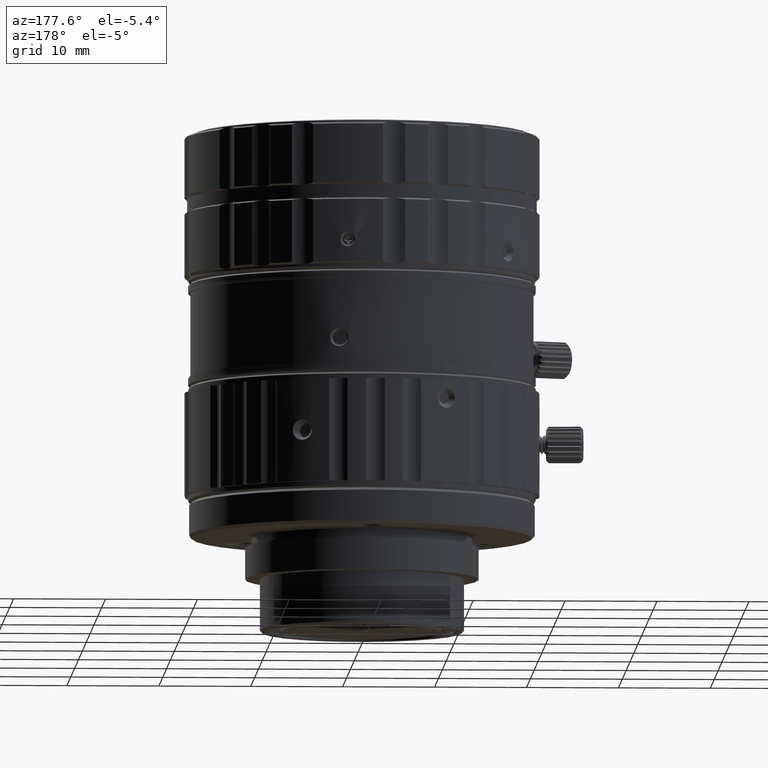
[diagram: clean part render]
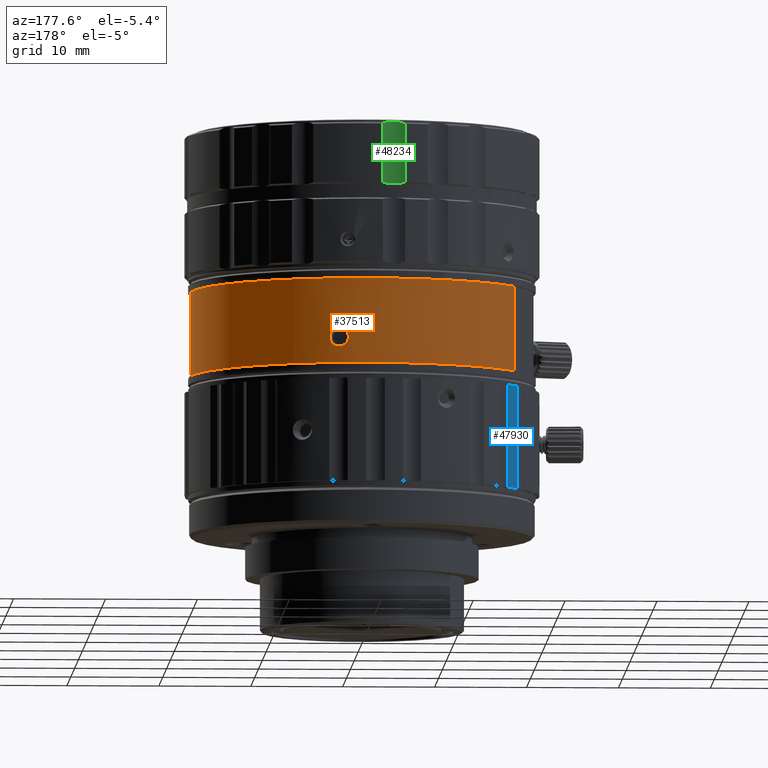
[diagram: same view with three faces highlighted in distinct colors, each labeled with its STEP entity id]
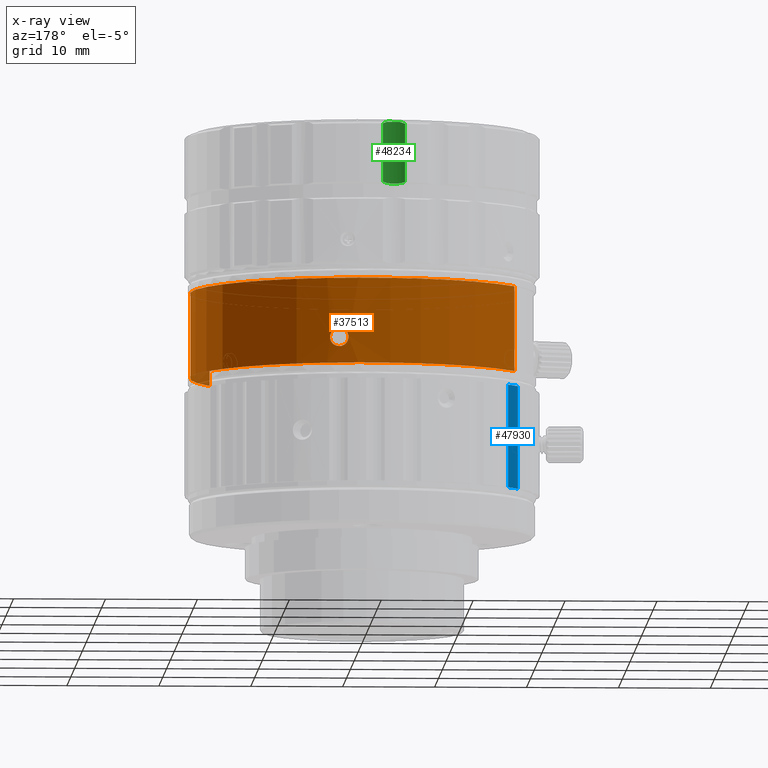
[diagram: x-ray of the same camera — body ghosted, the three highlighted faces saturated]
A machine part, auxiliary view with three faces highlighted in distinct colors.
The next image is the same camera in x-ray (body ghosted, the three faces saturated) — at least one of them is partly hidden behind the body in this view.
Their STEP definitions:

[orange] entity #37513 — the highlighted cylindrical surface (partial cylindrical patch) has radius 18.7 mm, axis along (0, 0, 1).
#139 = CARTESIAN_POINT ( 'NONE',  ( 2.251340142366236030, 18.56399985622164195, 18.57991853912697167 ) ) ;
#195 = VERTEX_POINT ( 'NONE', #25108 ) ;
#324 = EDGE_CURVE ( 'NONE', #17576, #14553, #42213, .T. ) ;
#628 = VERTEX_POINT ( 'NONE', #18775 ) ;
#638 = CARTESIAN_POINT ( 'NONE',  ( 4.233263099357547965, 18.21453163649968587, 18.51991838868319462 ) ) ;
#986 = CARTESIAN_POINT ( 'NONE',  ( 4.189832934962410604, 18.22460387203837229, 18.20051670581828063 ) ) ;
#1685 = CARTESIAN_POINT ( 'NONE',  ( 4.211389559210275024, 18.21965193912267011, 18.28350229625987566 ) ) ;
#2036 = CARTESIAN_POINT ( 'NONE',  ( 4.218978216545655968, 18.21774804549364291, 18.67579122243237322 ) ) ;
#2123 = EDGE_LOOP ( 'NONE', ( #9833, #43968, #58295, #30949 ) ) ;
#2360 = EDGE_CURVE ( 'NONE', #46749, #57878, #35588, .T. ) ;
#2560 = DIRECTION ( 'NONE',  ( -0.8660254037844969943, 0.4999999999998990252, 0.000000000000000000 ) ) ;
#2917 = FACE_BOUND ( 'NONE', #12540, .T. ) ;
#2952 = LINE ( 'NONE', #29784, #8270 ) ;
#3301 = CARTESIAN_POINT ( 'NONE',  ( 2.990391659138555536, 18.45970878979845153, 17.52159397077514313 ) ) ;
#3585 = CARTESIAN_POINT ( 'NONE',  ( 0.000000000000000000, 0.000000000000000000, -1.362500000000000044 ) ) ;
#4003 = CARTESIAN_POINT ( 'NONE',  ( 2.260249512002430183, 18.56283466045243458, 18.36078597094534004 ) ) ;
#6214 = CARTESIAN_POINT ( 'NONE',  ( 3.367596037697752287, 18.39468009827372441, 17.49994429289510833 ) ) ;
#6229 = CARTESIAN_POINT ( 'NONE',  ( 2.323361040985547632, 18.55551628351373239, 18.87260364383725175 ) ) ;
#6908 = CARTESIAN_POINT ( 'NONE',  ( 4.153469132464272739, 18.23291066080279421, 18.90100674380899903 ) ) ;
#7121 = EDGE_CURVE ( 'NONE', #50098, #61422, #49356, .T. ) ;
#7262 = CARTESIAN_POINT ( 'NONE',  ( 3.899544803398861337, 18.28882998312402464, 19.25923590273238517 ) ) ;
#8270 = VECTOR ( 'NONE', #56340, 1000.000000000000000 ) ;
#8905 = CARTESIAN_POINT ( 'NONE',  ( 2.736277888818424930, 18.49866230727799632, 17.63481227163454790 ) ) ;
#9238 = CARTESIAN_POINT ( 'NONE',  ( 2.285896153679041642, 18.55967799649585714, 18.23401306184187831 ) ) ;
#9639 = DIRECTION ( 'NONE',  ( -0.8660254037844969943, 0.4999999999998990252, 0.000000000000000000 ) ) ;
#9663 = CARTESIAN_POINT ( 'NONE',  ( 3.245249978137299873, 18.41685600425444846, 17.50422862316920103 ) ) ;
#9833 = ORIENTED_EDGE ( 'NONE', *, *, #2360, .F. ) ;
#10110 = CARTESIAN_POINT ( 'NONE',  ( 2.299537459336946643, 18.55807940249711763, 18.79088602181977308 ) ) ;
#11462 = CARTESIAN_POINT ( 'NONE',  ( 3.245249978137299873, 18.41685600425444846, 17.50422862316920103 ) ) ;
#12174 = CARTESIAN_POINT ( 'NONE',  ( 4.053030191923989278, 18.25533699527796117, 17.91449266249088978 ) ) ;
#12506 = CARTESIAN_POINT ( 'NONE',  ( 3.736380005432801799, 18.32341098043265504, 17.61344343271039037 ) ) ;
#12540 = EDGE_LOOP ( 'NONE', ( #25850, #36245, #30489, #44574 ) ) ;
#13683 = EDGE_CURVE ( 'NONE', #46749, #628, #21056, .T. ) ;
#13777 = CARTESIAN_POINT ( 'NONE',  ( 2.453267427404813628, 18.53839864460976017, 17.88843092985050376 ) ) ;
#14483 = CARTESIAN_POINT ( 'NONE',  ( 2.805400089415863274, 18.48832272361379125, 17.59800608069522099 ) ) ;
#14553 = VERTEX_POINT ( 'NONE', #49725 ) ;
#15346 = CARTESIAN_POINT ( 'NONE',  ( 2.628429977405068119, 18.51435650609562700, 19.27914889448376456 ) ) ;
#15534 = CARTESIAN_POINT ( 'NONE',  ( 0.000000000000000000, 0.000000000000000000, 24.94999999999999929 ) ) ;
#15660 = CARTESIAN_POINT ( 'NONE',  ( 3.476132665044037395, 18.37421458390378604, 19.48442067401516553 ) ) ;
#16693 = CARTESIAN_POINT ( 'NONE',  ( 4.125633382463253618, 18.23931541091526043, 18.96217359724225204 ) ) ;
#17038 = CARTESIAN_POINT ( 'NONE',  ( 3.493983790920494936, 18.37102361791439620, 17.51932683858180795 ) ) ;
#17397 = CARTESIAN_POINT ( 'NONE',  ( 4.232760843084655278, 18.21464111774253780, 18.53784647752415893 ) ) ;
#17576 = VERTEX_POINT ( 'NONE', #21359 ) ;
#18629 = DIRECTION ( 'NONE',  ( 0.000000000000000000, 0.000000000000000000, 1.000000000000000000 ) ) ;
#18775 = CARTESIAN_POINT ( 'NONE',  ( -16.19467505066617008, 9.349999999938111372, 15.69999999999999929 ) ) ;
#19004 = CARTESIAN_POINT ( 'NONE',  ( 2.760620879660200533, 18.49505741690938621, 17.62098891026028014 ) ) ;
#19339 = CARTESIAN_POINT ( 'NONE',  ( 2.608139983437145037, 18.51719187720837567, 17.72261134651004966 ) ) ;
#19709 = CARTESIAN_POINT ( 'NONE',  ( 2.529627807096745062, 18.52807734531415917, 17.79870989165382156 ) ) ;
#20319 = DIRECTION ( 'NONE',  ( 0.8660254037844969943, -0.4999999999998990252, 0.000000000000000000 ) ) ;
#20397 = CARTESIAN_POINT ( 'NONE',  ( 2.251212292554810812, 18.56399661681000524, 18.49995018108744915 ) ) ;
#21056 = CIRCLE ( 'NONE', #29969, 18.69999999987999928 ) ;
#21359 = CARTESIAN_POINT ( 'NONE',  ( 2.283964048664465007, 18.55510753448789885, 18.73536185655465047 ) ) ;
#21910 = CARTESIAN_POINT ( 'NONE',  ( 3.961328778317206645, 18.27554270464434083, 17.80120353429503766 ) ) ;
#22962 = CARTESIAN_POINT ( 'NONE',  ( 3.971593080161228251, 18.27328767814454835, 17.81239856531187726 ) ) ;
#23307 = CARTESIAN_POINT ( 'NONE',  ( 4.180774460592416197, 18.22651612953323408, 18.83243844726789717 ) ) ;
#24905 = CARTESIAN_POINT ( 'NONE',  ( 2.303379144126835865, 18.55757893846799078, 18.17559590031262573 ) ) ;
#25108 = CARTESIAN_POINT ( 'NONE',  ( -16.19467505066617008, 9.349999999938111372, 24.94999999999999929 ) ) ;
#25850 = ORIENTED_EDGE ( 'NONE', *, *, #7121, .F. ) ;
#26112 = CARTESIAN_POINT ( 'NONE',  ( 2.560879857138159466, 18.52389123438942065, 19.21916475329091156 ) ) ;
#27049 = EDGE_CURVE ( 'NONE', #628, #195, #2952, .T. ) ;
#27131 = CARTESIAN_POINT ( 'NONE',  ( 3.243181642754560112, 18.41726079674409888, 19.49885864951449932 ) ) ;
#27826 = CARTESIAN_POINT ( 'NONE',  ( 4.132807849518584931, 18.23767788214187391, 18.94743215748627208 ) ) ;
#28535 = CARTESIAN_POINT ( 'NONE',  ( 3.878843669217157064, 18.29320624705657750, 19.27695760426604110 ) ) ;
#29784 = CARTESIAN_POINT ( 'NONE',  ( -16.19467505066617008, 9.349999999938111372, -1.362500000000000044 ) ) ;
#29969 = AXIS2_PLACEMENT_3D ( 'NONE', #68161, #41244, #20319 ) ;
#30138 = CARTESIAN_POINT ( 'NONE',  ( 2.503647186324434060, 18.53162849649397970, 17.82672238542849286 ) ) ;
#30489 = ORIENTED_EDGE ( 'NONE', *, *, #324, .F. ) ;
#30949 = ORIENTED_EDGE ( 'NONE', *, *, #53858, .T. ) ;
#31131 = CARTESIAN_POINT ( 'NONE',  ( 2.251212292554810812, 18.56399661681000524, 18.49995018108744915 ) ) ;
#31673 = CARTESIAN_POINT ( 'NONE',  ( 3.836822528680110533, 18.30203430939959830, 19.31092372405599633 ) ) ;
#31862 = CARTESIAN_POINT ( 'NONE',  ( 2.251339866633488285, 18.56397488566215159, 18.48334330546360604 ) ) ;
#32044 = CARTESIAN_POINT ( 'NONE',  ( 2.521402620938986594, 18.52939608548221528, 19.17917559128452609 ) ) ;
#32709 = CARTESIAN_POINT ( 'NONE',  ( 4.146423129689514653, 18.23454637064197570, 18.91760859762197811 ) ) ;
#33072 = CARTESIAN_POINT ( 'NONE',  ( 3.932999075985577520, 18.28167805597980689, 19.22761459797846939 ) ) ;
#33415 = CARTESIAN_POINT ( 'NONE',  ( 4.233403536565653269, 18.21450243460348872, 18.50917470819319988 ) ) ;
#33749 = CARTESIAN_POINT ( 'NONE',  ( 4.231664853538679161, 18.21488311118911696, 18.56457121916940523 ) ) ;
#34228 = DIRECTION ( 'NONE',  ( 0.000000000000000000, 0.000000000000000000, 1.000000000000000000 ) ) ;
#35029 = CARTESIAN_POINT ( 'NONE',  ( 2.313837504264089517, 18.55634587020040271, 18.14537420200270645 ) ) ;
#35376 = CARTESIAN_POINT ( 'NONE',  ( 2.795622074668574708, 18.48979961256322468, 17.60288531342790108 ) ) ;
#35588 = LINE ( 'NONE', #60777, #41620 ) ;
#35704 = CARTESIAN_POINT ( 'NONE',  ( 16.19467505066616653, -9.349999999938113149, 24.94999999999999929 ) ) ;
#36245 = ORIENTED_EDGE ( 'NONE', *, *, #51412, .F. ) ;
#36590 = CARTESIAN_POINT ( 'NONE',  ( 2.846175089316255846, 18.48224937709806071, 19.42021964308115400 ) ) ;
#36906 = CARTESIAN_POINT ( 'NONE',  ( 3.659005170816370889, 18.33831806847075896, 19.41735640394751528 ) ) ;
#36918 = CARTESIAN_POINT ( 'NONE',  ( 2.433900780967047428, 18.54133162820244252, 19.07186767919768045 ) ) ;
#37076 = CARTESIAN_POINT ( 'NONE',  ( 2.253642230798782009, 18.56367263210969298, 18.42907390055996686 ) ) ;
#37513 = ADVANCED_FACE ( 'NONE', ( #60856, #2917 ), #50370, .T. ) ;
#37947 = CARTESIAN_POINT ( 'NONE',  ( 4.032980425070166852, 18.26001065799792755, 19.11652516488869935 ) ) ;
#37962 = CARTESIAN_POINT ( 'NONE',  ( 2.619086241960097539, 18.51568373309925875, 19.27148368996459737 ) ) ;
#38664 = CARTESIAN_POINT ( 'NONE',  ( 4.173308521222507395, 18.22837879127069272, 18.15011637086682583 ) ) ;
#39009 = CARTESIAN_POINT ( 'NONE',  ( 3.940380176501842246, 18.28009075846108189, 19.22028363636891157 ) ) ;
#39343 = CARTESIAN_POINT ( 'NONE',  ( 4.184660909787803362, 18.22578718853461410, 18.18375538082267084 ) ) ;
#41244 = DIRECTION ( 'NONE',  ( 0.000000000000000000, 0.000000000000000000, 1.000000000000000000 ) ) ;
#41620 = VECTOR ( 'NONE', #34228, 1000.000000000000000 ) ;
#42213 = B_SPLINE_CURVE_WITH_KNOTS ( 'NONE', 3,
 ( #42846, #10110, #6229, #42498, #36918, #54048, #32044, #26112, #59269, #52646, #37962, #15346, #57899, #36590, #64176, #63487, #27131 ),
 .UNSPECIFIED., .F., .F.,
 ( 4, 2, 2, 2, 1, 2, 2, 2, 4 ),
 ( 0.000000000000000000, 0.2500000000000010547, 0.3749999999999983347, 0.4374999999999967248, 0.4687499999999957256, 0.4843749999999949485, 0.4999999999999941713, 0.7499999999999971134, 1.000000000000000000 ),
 .UNSPECIFIED. ) ;
#42324 = CARTESIAN_POINT ( 'NONE',  ( 2.251815316349948137, 18.56391005925629401, 18.46414046964996203 ) ) ;
#42498 = CARTESIAN_POINT ( 'NONE',  ( 2.400924806757842145, 18.54565039286728734, 19.01919466233076506 ) ) ;
#42846 = CARTESIAN_POINT ( 'NONE',  ( 2.283964048664465007, 18.55510753448789885, 18.73536185655465047 ) ) ;
#43179 = CARTESIAN_POINT ( 'NONE',  ( 3.993099017776216897, 18.26855813759924274, 17.83695233948711589 ) ) ;
#43864 = CARTESIAN_POINT ( 'NONE',  ( 4.199287122396272665, 18.22224873738643325, 18.77254784786887143 ) ) ;
#43968 = ORIENTED_EDGE ( 'NONE', *, *, #13683, .T. ) ;
#44232 = CARTESIAN_POINT ( 'NONE',  ( 4.086536701909163405, 18.24813329190857303, 19.03417942511224581 ) ) ;
#44574 = ORIENTED_EDGE ( 'NONE', *, *, #48497, .F. ) ;
#44575 = CARTESIAN_POINT ( 'NONE',  ( 4.228738525764958567, 18.21563260212769109, 18.38066040315518990 ) ) ;
#45504 = CARTESIAN_POINT ( 'NONE',  ( 3.121146065590598706, 18.43813279775215719, 17.50024891009108430 ) ) ;
#45835 = CARTESIAN_POINT ( 'NONE',  ( 2.661141976369918005, 18.50964031578447688, 17.68249553288602627 ) ) ;
#46540 = CARTESIAN_POINT ( 'NONE',  ( 2.254993668640908666, 18.56349966909282401, 18.41179602365821921 ) ) ;
#46749 = VERTEX_POINT ( 'NONE', #68709 ) ;
#47247 = CARTESIAN_POINT ( 'NONE',  ( 2.260730307070912826, 18.56285100071518102, 18.65947375527981578 ) ) ;
#48497 = EDGE_CURVE ( 'NONE', #61422, #17576, #67465, .T. ) ;
#48793 = CARTESIAN_POINT ( 'NONE',  ( 4.233538271200914416, 18.21448765118192270, 18.44303506773498569 ) ) ;
#49134 = CARTESIAN_POINT ( 'NONE',  ( 4.229579399804605622, 18.21535060020553587, 18.59076753769454626 ) ) ;
#49356 = B_SPLINE_CURVE_WITH_KNOTS ( 'NONE', 3,
 ( #50766, #45504, #3301, #56359, #66834, #14483, #35376, #19004, #8905, #45835, #19339, #19709, #30138, #13777, #57038, #67532, #51442, #35029, #24905, #9238, #51797, #4003, #46540, #37076, #42324, #31862, #58062 ),
 .UNSPECIFIED., .F., .F.,
 ( 4, 2, 2, 2, 2, 2, 2, 2, 2, 2, 1, 2, 2, 4 ),
 ( 0.000000000000000000, 0.2173006326240855546, 0.2444632117020971995, 0.2716257907801088445, 0.3259509489361321344, 0.4346012652481788252, 0.4889264234042039470, 0.5432515815602291243, 0.6519018978722798119, 0.7062270560283051557, 0.7605522141843304995, 0.8148773723403559543, 0.8420399514183712908, 0.8692025304963866272 ),
 .UNSPECIFIED. ) ;
#49725 = CARTESIAN_POINT ( 'NONE',  ( 3.243181642754560112, 18.41726079674409888, 19.49885864951449932 ) ) ;
#49842 = CARTESIAN_POINT ( 'NONE',  ( 3.919696465947490882, 18.28452776430411930, 19.24040973825843537 ) ) ;
#50098 = VERTEX_POINT ( 'NONE', #9663 ) ;
#50370 = CYLINDRICAL_SURFACE ( 'NONE', #68300, 18.69999999987999928 ) ;
#50766 = CARTESIAN_POINT ( 'NONE',  ( 3.245249978137299873, 18.41685600425444846, 17.50422862316920103 ) ) ;
#51412 = EDGE_CURVE ( 'NONE', #14553, #50098, #62127, .T. ) ;
#51442 = CARTESIAN_POINT ( 'NONE',  ( 2.350806156632075705, 18.55178774111910656, 18.05402992179465826 ) ) ;
#51797 = CARTESIAN_POINT ( 'NONE',  ( 2.270460115741250728, 18.56155851876482643, 18.29497537659923623 ) ) ;
#52178 = CARTESIAN_POINT ( 'NONE',  ( 2.283964048664465007, 18.55510753448789885, 18.73536185655465047 ) ) ;
#52646 = CARTESIAN_POINT ( 'NONE',  ( 2.603886732316271768, 18.51783685800113588, 19.25856404256589727 ) ) ;
#52853 = DIRECTION ( 'NONE',  ( 0.000000000000000000, 0.000000000000000000, -1.000000000000000000 ) ) ;
#52992 = CARTESIAN_POINT ( 'NONE',  ( 3.719865186346422270, 18.32610237089692262, 19.38775495266195392 ) ) ;
#53858 = EDGE_CURVE ( 'NONE', #195, #57878, #60596, .T. ) ;
#54035 = CARTESIAN_POINT ( 'NONE',  ( 4.024463324214316629, 18.26165268927534058, 17.87458608385850312 ) ) ;
#54048 = CARTESIAN_POINT ( 'NONE',  ( 2.497733010168182499, 18.53265450620338939, 19.15220028195729185 ) ) ;
#54731 = CARTESIAN_POINT ( 'NONE',  ( 4.166462701737020602, 18.22993841446036711, 18.13156252508973409 ) ) ;
#55076 = CARTESIAN_POINT ( 'NONE',  ( 4.136243955260979988, 18.23681073822693932, 18.05544458699763766 ) ) ;
#56340 = DIRECTION ( 'NONE',  ( 0.000000000000000000, 0.000000000000000000, 1.000000000000000000 ) ) ;
#56359 = CARTESIAN_POINT ( 'NONE',  ( 2.851188885806060114, 18.48131520411405759, 17.57728451642683609 ) ) ;
#57038 = CARTESIAN_POINT ( 'NONE',  ( 2.435581221367480786, 18.54073410982474712, 17.91316780361007233 ) ) ;
#57878 = VERTEX_POINT ( 'NONE', #35704 ) ;
#57899 = CARTESIAN_POINT ( 'NONE',  ( 2.736910790225346002, 18.49891783279793955, 19.36581892945842753 ) ) ;
#58062 = CARTESIAN_POINT ( 'NONE',  ( 2.251212292554810812, 18.56399661681000524, 18.49995018108744915 ) ) ;
#58216 = CARTESIAN_POINT ( 'NONE',  ( 3.807984641983407137, 18.30802011761736026, 19.33159556676754320 ) ) ;
#58295 = ORIENTED_EDGE ( 'NONE', *, *, #27049, .T. ) ;
#59257 = CARTESIAN_POINT ( 'NONE',  ( 4.224191810962694582, 18.21656531980768534, 18.64239542316898479 ) ) ;
#59269 = CARTESIAN_POINT ( 'NONE',  ( 2.581610443061367111, 18.52098472385783623, 19.23903844002336072 ) ) ;
#59618 = CARTESIAN_POINT ( 'NONE',  ( 3.852216590554379927, 18.29948986644723874, 17.68833779142222440 ) ) ;
#59978 = CARTESIAN_POINT ( 'NONE',  ( 4.106165458922910183, 18.24354669336809209, 17.99694696649591563 ) ) ;
#60312 = CARTESIAN_POINT ( 'NONE',  ( 4.203914764020697525, 18.22137542061589244, 18.25052808432514695 ) ) ;
#60596 = CIRCLE ( 'NONE', #63920, 18.69999999987999928 ) ;
#60777 = CARTESIAN_POINT ( 'NONE',  ( 16.19467505066616653, -9.349999999938113149, -1.362500000000000044 ) ) ;
#60856 = FACE_OUTER_BOUND ( 'NONE', #2123, .T. ) ;
#61422 = VERTEX_POINT ( 'NONE', #31131 ) ;
#62127 = B_SPLINE_CURVE_WITH_KNOTS ( 'NONE', 3,
 ( #68033, #63470, #15660, #36906, #52992, #58216, #31673, #28535, #7262, #49842, #33072, #39009, #65210, #37947, #44232, #64851, #16693, #27826, #32709, #6908, #23307, #43864, #2036, #59257, #49134, #33749, #17397, #638, #33415, #48793, #44575, #1685, #60312, #986, #39343, #38664, #54731, #55076, #59978, #12174, #54035, #43179, #22962, #21910, #59618, #12506, #17038, #6214, #11462 ),
 .UNSPECIFIED., .F., .F.,
 ( 4, 2, 2, 2, 1, 2, 2, 2, 2, 2, 2, 2, 2, 1, 2, 2, 2, 2, 2, 2, 2, 1, 2, 2, 2, 4 ),
 ( 0.000000000000000000, 0.1249999999999949207, 0.1874999999999926448, 0.2187499999999917843, 0.2343749999999924227, 0.2421874999999921452, 0.2499999999999918954, 0.3124999999999920064, 0.3437499999999908962, 0.3593749999999905631, 0.3749999999999901745, 0.4374999999999894529, 0.4687499999999890643, 0.4843749999999903411, 0.4921874999999910627, 0.4999999999999916733, 0.5624999999999932276, 0.5937499999999925615, 0.6093749999999936717, 0.6249999999999947820, 0.6874999999999984457, 0.7187500000000014433, 0.7343750000000016653, 0.7500000000000018874, 0.8750000000000009992, 1.000000000000000000 ),
 .UNSPECIFIED. ) ;
#63470 = CARTESIAN_POINT ( 'NONE',  ( 3.354303570806642654, 18.39704780709248055, 19.49997120160953656 ) ) ;
#63487 = CARTESIAN_POINT ( 'NONE',  ( 3.154303405496779789, 18.43226771607760028, 19.49965160750259940 ) ) ;
#63920 = AXIS2_PLACEMENT_3D ( 'NONE', #15534, #52853, #9639 ) ;
#64176 = CARTESIAN_POINT ( 'NONE',  ( 3.054833984334522690, 18.44893098290869915, 19.48699058813896556 ) ) ;
#64851 = CARTESIAN_POINT ( 'NONE',  ( 4.103035495735874782, 18.24443801589161041, 19.00583096601215871 ) ) ;
#65210 = CARTESIAN_POINT ( 'NONE',  ( 3.991850298266599761, 18.26898688510280877, 19.16781222617055036 ) ) ;
#66834 = CARTESIAN_POINT ( 'NONE',  ( 2.835834185984714484, 18.48367849374144001, 17.58390508051555656 ) ) ;
#67465 = B_SPLINE_CURVE_WITH_KNOTS ( 'NONE', 3,
 ( #20397, #139, #47247, #52178 ),
 .UNSPECIFIED., .F., .F.,
 ( 4, 4 ),
 ( 0.8692025304963866272, 1.000000000000000000 ),
 .UNSPECIFIED. ) ;
#67532 = CARTESIAN_POINT ( 'NONE',  ( 2.381458303569336632, 18.54785274526969729, 17.99554600026900530 ) ) ;
#68033 = CARTESIAN_POINT ( 'NONE',  ( 3.243181642754560112, 18.41726079674409888, 19.49885864951449932 ) ) ;
#68161 = CARTESIAN_POINT ( 'NONE',  ( 0.000000000000000000, 0.000000000000000000, 15.69999999999999929 ) ) ;
#68300 = AXIS2_PLACEMENT_3D ( 'NONE', #3585, #18629, #2560 ) ;
#68709 = CARTESIAN_POINT ( 'NONE',  ( 16.19467505066616653, -9.349999999938113149, 15.69999999999999929 ) ) ;

[blue] entity #47930 — the highlighted cylindrical surface (partial cylindrical patch) has radius 19.3 mm, axis along (0, 0, 1).
#2807 = DIRECTION ( 'NONE',  ( 0.000000000000000000, 0.000000000000000000, 1.000000000000000000 ) ) ;
#3479 = EDGE_LOOP ( 'NONE', ( #42558, #11583, #65829, #17668 ) ) ;
#4810 = VERTEX_POINT ( 'NONE', #40595 ) ;
#5481 = EDGE_CURVE ( 'NONE', #8295, #64606, #10495, .T. ) ;
#8295 = VERTEX_POINT ( 'NONE', #15890 ) ;
#9194 = VECTOR ( 'NONE', #63526, 1000.000000000000000 ) ;
#9351 = DIRECTION ( 'NONE',  ( 0.9925461516413369711, -0.1218693434050259899, 0.000000000000000000 ) ) ;
#10495 = LINE ( 'NONE', #16746, #9194 ) ;
#11583 = ORIENTED_EDGE ( 'NONE', *, *, #66883, .T. ) ;
#13735 = AXIS2_PLACEMENT_3D ( 'NONE', #32609, #15901, #22503 ) ;
#14580 = VERTEX_POINT ( 'NONE', #62257 ) ;
#15890 = CARTESIAN_POINT ( 'NONE',  ( -16.54353961665400163, 9.939884151838979776, 2.799391213819999891 ) ) ;
#15901 = DIRECTION ( 'NONE',  ( 0.000000000000000000, 0.000000000000000000, 1.000000000000000000 ) ) ;
#16746 = CARTESIAN_POINT ( 'NONE',  ( -16.54353961665860240, 9.939884151842369064, -2.131801679627900500E-11 ) ) ;
#17668 = ORIENTED_EDGE ( 'NONE', *, *, #34520, .T. ) ;
#19541 = CARTESIAN_POINT ( 'NONE',  ( -15.41341912069280085, 11.61535668887800021, -1.557087792036779786E-11 ) ) ;
#22082 = AXIS2_PLACEMENT_3D ( 'NONE', #45608, #30590, #9351 ) ;
#22503 = DIRECTION ( 'NONE',  ( 1.000000000000000000, 0.000000000000000000, 0.000000000000000000 ) ) ;
#24669 = EDGE_CURVE ( 'NONE', #14580, #4810, #67011, .T. ) ;
#30590 = DIRECTION ( 'NONE',  ( 0.000000000000000000, 0.000000000000000000, 1.000000000000000000 ) ) ;
#30604 = AXIS2_PLACEMENT_3D ( 'NONE', #41791, #52618, #47379 ) ;
#32609 = CARTESIAN_POINT ( 'NONE',  ( 0.000000000000000000, 0.000000000000000000, 2.799391213819999891 ) ) ;
#34520 = EDGE_CURVE ( 'NONE', #64606, #4810, #51806, .T. ) ;
#35818 = FACE_OUTER_BOUND ( 'NONE', #3479, .T. ) ;
#39153 = CARTESIAN_POINT ( 'NONE',  ( -16.54353961665839989, 9.939884151847969918, 14.00000000000000000 ) ) ;
#40595 = CARTESIAN_POINT ( 'NONE',  ( -15.41341912069110087, 11.61535668887439954, 14.00000000000000000 ) ) ;
#41791 = CARTESIAN_POINT ( 'NONE',  ( 0.000000000000000000, 0.000000000000000000, 14.00000000000000000 ) ) ;
#42558 = ORIENTED_EDGE ( 'NONE', *, *, #24669, .F. ) ;
#43775 = CIRCLE ( 'NONE', #13735, 19.30000000000000071 ) ;
#45608 = CARTESIAN_POINT ( 'NONE',  ( 0.000000000000000000, 0.000000000000000000, 25.25499999999999901 ) ) ;
#47379 = DIRECTION ( 'NONE',  ( 1.000000000000000000, 0.000000000000000000, 0.000000000000000000 ) ) ;
#47930 = ADVANCED_FACE ( 'NONE', ( #35818 ), #57139, .T. ) ;
#49976 = VECTOR ( 'NONE', #2807, 1000.000000000000000 ) ;
#51806 = CIRCLE ( 'NONE', #30604, 19.30000000000000071 ) ;
#52618 = DIRECTION ( 'NONE',  ( 0.000000000000000000, 0.000000000000000000, -1.000000000000000000 ) ) ;
#57139 = CYLINDRICAL_SURFACE ( 'NONE', #22082, 19.30000000000000071 ) ;
#62257 = CARTESIAN_POINT ( 'NONE',  ( -15.41341912069110087, 11.61535668887439954, 2.799391213819999891 ) ) ;
#63526 = DIRECTION ( 'NONE',  ( 0.000000000000000000, 0.000000000000000000, 1.000000000000000000 ) ) ;
#64606 = VERTEX_POINT ( 'NONE', #39153 ) ;
#65829 = ORIENTED_EDGE ( 'NONE', *, *, #5481, .T. ) ;
#66883 = EDGE_CURVE ( 'NONE', #14580, #8295, #43775, .T. ) ;
#67011 = LINE ( 'NONE', #19541, #49976 ) ;

[green] entity #48234 — the highlighted cylindrical surface (edge-blend (fillet) strip) has radius 3 mm, axis along (0, 0, 1).
#582 = CARTESIAN_POINT ( 'NONE',  ( -3.793005896617954509, 18.87451317338677725, 35.34528484750822486 ) ) ;
#2254 = LINE ( 'NONE', #23520, #33837 ) ;
#2659 = EDGE_CURVE ( 'NONE', #23716, #61670, #67849, .T. ) ;
#3393 = VERTEX_POINT ( 'NONE', #49173 ) ;
#4285 = CARTESIAN_POINT ( 'NONE',  ( -2.231823937103088351, 18.90270474757153707, 35.21959058198174120 ) ) ;
#4520 = CARTESIAN_POINT ( 'NONE',  ( -1.786549473618139983, 19.06851471402099918, 41.89821567898999888 ) ) ;
#4607 = CARTESIAN_POINT ( 'NONE',  ( -2.539641878434193867, 18.82980048851529631, 35.19999999981845917 ) ) ;
#5126 = CARTESIAN_POINT ( 'NONE',  ( -2.856136332307098513, 18.78532009378928791, 35.19999999981843786 ) ) ;
#5445 = CARTESIAN_POINT ( 'NONE',  ( -3.421871767168809697, 18.80703403182150169, 41.93428109757999778 ) ) ;
#6186 = CARTESIAN_POINT ( 'NONE',  ( -2.644288918242850173, 18.81509330608669828, 35.19999999999809859 ) ) ;
#6745 = EDGE_LOOP ( 'NONE', ( #67627, #36769, #52439, #7283, #35458, #25097, #8241 ) ) ;
#7283 = ORIENTED_EDGE ( 'NONE', *, *, #44408, .F. ) ;
#8241 = ORIENTED_EDGE ( 'NONE', *, *, #39137, .T. ) ;
#10459 = CARTESIAN_POINT ( 'NONE',  ( -1.468361946223530001, 19.24406176447210015, 41.75000000000000000 ) ) ;
#10741 = CARTESIAN_POINT ( 'NONE',  ( -3.067213209453864220, 18.77830220830583841, 35.21502555573255222 ) ) ;
#11774 = VERTEX_POINT ( 'NONE', #23446 ) ;
#12638 = VERTEX_POINT ( 'NONE', #63303 ) ;
#13009 = CIRCLE ( 'NONE', #48640, 3.000000000000000444 ) ;
#15580 = CARTESIAN_POINT ( 'NONE',  ( -3.892902205263879978, 18.90331485269679845, 41.75000000000000000 ) ) ;
#16635 = CARTESIAN_POINT ( 'NONE',  ( -3.061808221122889861, 21.78589751230860116, 41.95000000000000284 ) ) ;
#16655 = LINE ( 'NONE', #21513, #66457 ) ;
#18184 = B_SPLINE_CURVE_WITH_KNOTS ( 'NONE', 3,
 ( #35992, #4607, #47154, #4285, #41930, #21330, #47519, #47861, #36688 ),
 .UNSPECIFIED., .F., .F.,
 ( 4, 1, 2, 2, 4 ),
 ( 0.000000000000000000, 0.2499999999999978906, 0.3749999999999978351, 0.4999999999999977796, 1.000000000000000000 ),
 .UNSPECIFIED. ) ;
#21136 = CARTESIAN_POINT ( 'NONE',  ( -3.364951039656290277, 18.80125273754190118, 41.95000000000000284 ) ) ;
#21330 = CARTESIAN_POINT ( 'NONE',  ( -2.078666081667742915, 18.95135399621111105, 35.23749552659992901 ) ) ;
#21513 = CARTESIAN_POINT ( 'NONE',  ( -1.468361946223530001, 19.24406176447210015, 35.37320508075699621 ) ) ;
#23446 = CARTESIAN_POINT ( 'NONE',  ( -3.892902205265059923, 18.90331485269449985, 35.37320508075509196 ) ) ;
#23520 = CARTESIAN_POINT ( 'NONE',  ( -3.892902205263879978, 18.90331485269679845, 35.37320508075699621 ) ) ;
#23716 = VERTEX_POINT ( 'NONE', #15580 ) ;
#24677 = CARTESIAN_POINT ( 'NONE',  ( -3.892902205265059923, 18.90331485269449985, 35.37320508075509196 ) ) ;
#25097 = ORIENTED_EDGE ( 'NONE', *, *, #31137, .F. ) ;
#27442 = DIRECTION ( 'NONE',  ( -6.355331643803450622E-14, -1.768394408865269975E-14, 1.000000000000000000 ) ) ;
#27770 = FACE_OUTER_BOUND ( 'NONE', #6745, .T. ) ;
#29832 = AXIS2_PLACEMENT_3D ( 'NONE', #16635, #53971, #37889 ) ;
#30903 = EDGE_CURVE ( 'NONE', #60070, #12638, #38094, .T. ) ;
#31137 = EDGE_CURVE ( 'NONE', #11774, #42658, #52221, .T. ) ;
#31269 = CARTESIAN_POINT ( 'NONE',  ( -3.386346519348245376, 18.80186157447957740, 35.26010222347482426 ) ) ;
#32052 = CARTESIAN_POINT ( 'NONE',  ( -1.947729047503680144, 19.00043029927060090, 41.95000000000000284 ) ) ;
#32181 = DIRECTION ( 'NONE',  ( 0.000000000000000000, 0.000000000000000000, 1.000000000000000000 ) ) ;
#33837 = VECTOR ( 'NONE', #66119, 1000.000000000000000 ) ;
#35458 = ORIENTED_EDGE ( 'NONE', *, *, #37603, .F. ) ;
#35992 = CARTESIAN_POINT ( 'NONE',  ( -2.644288918242850173, 18.81509330608669828, 35.19999999999809859 ) ) ;
#36145 = CARTESIAN_POINT ( 'NONE',  ( -3.833003472897250408, 18.88604510469220088, 41.77899665238999916 ) ) ;
#36489 = CARTESIAN_POINT ( 'NONE',  ( -3.713676929608390243, 18.85568748009750095, 41.83232687294999863 ) ) ;
#36688 = CARTESIAN_POINT ( 'NONE',  ( -1.468361946216659941, 19.24406176447349992, 35.37320508075620040 ) ) ;
#36769 = ORIENTED_EDGE ( 'NONE', *, *, #44943, .T. ) ;
#36852 = CARTESIAN_POINT ( 'NONE',  ( -2.644288918242850173, 18.81509330608669828, 35.19999999999809859 ) ) ;
#37603 = EDGE_CURVE ( 'NONE', #42658, #3393, #18184, .T. ) ;
#37889 = DIRECTION ( 'NONE',  ( 0.9205048534523880832, 0.3907311284893968950, 0.000000000000000000 ) ) ;
#38094 = B_SPLINE_CURVE_WITH_KNOTS ( 'NONE', 3,
 ( #32052, #41831, #4520, #53697, #53355, #10459 ),
 .UNSPECIFIED., .F., .F.,
 ( 4, 1, 1, 4 ),
 ( 0.000000000000000000, 0.3333333333333000081, 0.6666666666667000474, 1.000000000000000000 ),
 .UNSPECIFIED. ) ;
#39137 = EDGE_CURVE ( 'NONE', #11774, #23716, #2254, .T. ) ;
#41744 = CARTESIAN_POINT ( 'NONE',  ( -3.692118039851321587, 18.85104971641677452, 35.32064736301420993 ) ) ;
#41831 = CARTESIAN_POINT ( 'NONE',  ( -1.893999855226530027, 19.02191989851819898, 41.93410148040999985 ) ) ;
#41930 = CARTESIAN_POINT ( 'NONE',  ( -2.130387483321846354, 18.93391751483266461, 35.23078520036074224 ) ) ;
#42658 = VERTEX_POINT ( 'NONE', #6186 ) ;
#42868 = CARTESIAN_POINT ( 'NONE',  ( -1.947729047503680144, 19.00043029927060090, 41.95000000000000284 ) ) ;
#43126 = CYLINDRICAL_SURFACE ( 'NONE', #29832, 2.999999999999999556 ) ;
#43331 = CARTESIAN_POINT ( 'NONE',  ( -3.061808221122889861, 21.78589751230860116, 41.95000000000000284 ) ) ;
#44408 = EDGE_CURVE ( 'NONE', #3393, #12638, #16655, .T. ) ;
#44943 = EDGE_CURVE ( 'NONE', #61670, #60070, #13009, .T. ) ;
#47154 = CARTESIAN_POINT ( 'NONE',  ( -2.384613712910427008, 18.86004427527293004, 35.20559730900797035 ) ) ;
#47519 = CARTESIAN_POINT ( 'NONE',  ( -1.833081495017831797, 19.04106154416759722, 35.27391026027289911 ) ) ;
#47861 = CARTESIAN_POINT ( 'NONE',  ( -1.646573787590246418, 19.13234290336357901, 35.31671912947325609 ) ) ;
#48234 = ADVANCED_FACE ( 'NONE', ( #27770 ), #43126, .F. ) ;
#48640 = AXIS2_PLACEMENT_3D ( 'NONE', #43331, #32181, #64663 ) ;
#49173 = CARTESIAN_POINT ( 'NONE',  ( -1.468361946216659941, 19.24406176447349992, 35.37320508075620040 ) ) ;
#52221 = B_SPLINE_CURVE_WITH_KNOTS ( 'NONE', 3,
 ( #24677, #582, #41744, #63083, #31269, #10741, #5126, #36852 ),
 .UNSPECIFIED., .F., .F.,
 ( 4, 2, 2, 4 ),
 ( 0.000000000000000000, 0.2500000000000005551, 0.5000000000000011102, 1.000000000000000000 ),
 .UNSPECIFIED. ) ;
#52439 = ORIENTED_EDGE ( 'NONE', *, *, #30903, .T. ) ;
#53355 = CARTESIAN_POINT ( 'NONE',  ( -1.520918995205739810, 19.21111438225710089, 41.77885329987999796 ) ) ;
#53697 = CARTESIAN_POINT ( 'NONE',  ( -1.626876621699750114, 19.14924680098040000, 41.83201237292000485 ) ) ;
#53971 = DIRECTION ( 'NONE',  ( 0.000000000000000000, 0.000000000000000000, 1.000000000000000000 ) ) ;
#58840 = CARTESIAN_POINT ( 'NONE',  ( -3.892902205263879978, 18.90331485269679845, 41.75000000000000000 ) ) ;
#60070 = VERTEX_POINT ( 'NONE', #42868 ) ;
#60798 = CARTESIAN_POINT ( 'NONE',  ( -3.364951039656290277, 18.80125273754190118, 41.95000000000000284 ) ) ;
#61670 = VERTEX_POINT ( 'NONE', #60798 ) ;
#63083 = CARTESIAN_POINT ( 'NONE',  ( -3.487951817849593628, 18.81466209453193628, 35.27793789188977058 ) ) ;
#63303 = CARTESIAN_POINT ( 'NONE',  ( -1.468361946223530001, 19.24406176447210015, 41.75000000000000000 ) ) ;
#63395 = CARTESIAN_POINT ( 'NONE',  ( -3.537178545683779873, 18.82203664628190154, 41.89871951474000156 ) ) ;
#64663 = DIRECTION ( 'NONE',  ( -0.1010476061782160512, -0.9948815915905028229, 0.000000000000000000 ) ) ;
#66119 = DIRECTION ( 'NONE',  ( 1.177480346804989991E-13, 1.137670692727950035E-14, 1.000000000000000000 ) ) ;
#66457 = VECTOR ( 'NONE', #27442, 1000.000000000000000 ) ;
#67627 = ORIENTED_EDGE ( 'NONE', *, *, #2659, .T. ) ;
#67849 = B_SPLINE_CURVE_WITH_KNOTS ( 'NONE', 3,
 ( #58840, #36145, #36489, #63395, #5445, #21136 ),
 .UNSPECIFIED., .F., .F.,
 ( 4, 1, 1, 4 ),
 ( 0.000000000000000000, 0.3333333333333000081, 0.6666666666667000474, 1.000000000000000000 ),
 .UNSPECIFIED. ) ;